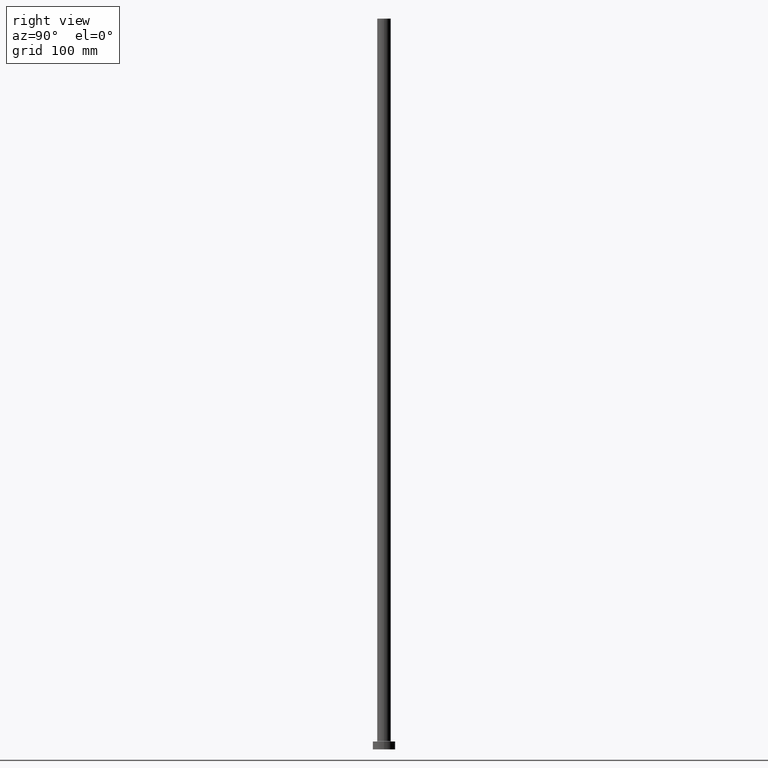
[diagram: clean part render]
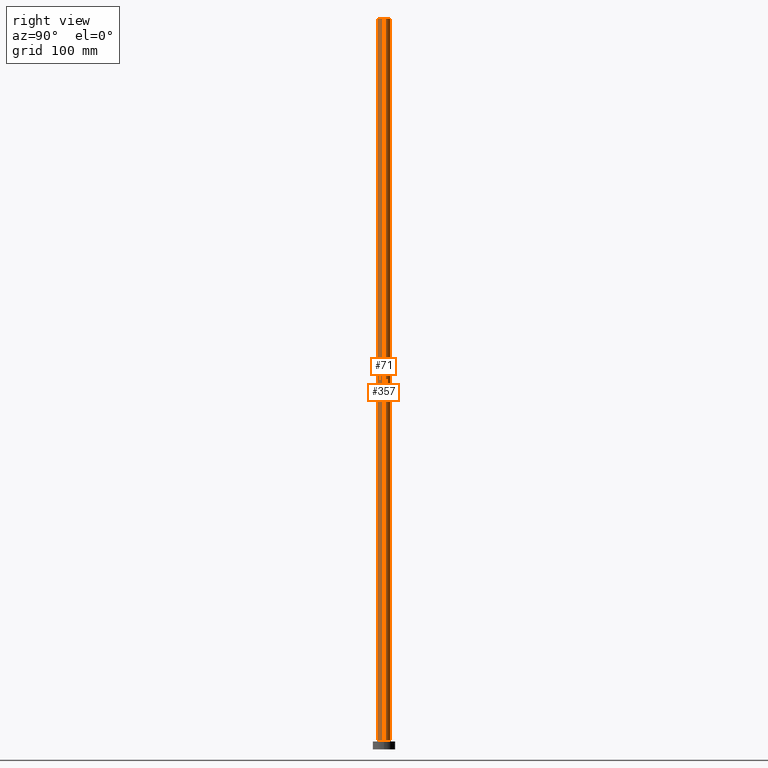
[diagram: same view with one multi-face feature highlighted, each face labeled with its STEP entity id]
A machine part, right view. The highlighted faces form ONE feature: a constant-radius fillet chain: 2 tangent blend faces with common blend radius 6 mm. The faces share edges in the B-rep.
Their STEP definitions:
[1] entity #357 (Cylinder):
#4 = CARTESIAN_POINT ( 'NONE',  ( -6.000000000000000888, 0.000000000000000000, 650.0000000000000000 ) ) ;
#9 = ORIENTED_EDGE ( 'NONE', *, *, #350, .T. ) ;
#28 = EDGE_CURVE ( 'NONE', #174, #138, #457, .T. ) ;
#46 = DIRECTION ( 'NONE',  ( 1.000000000000000000, 0.000000000000000000, 0.000000000000000000 ) ) ;
#51 = VECTOR ( 'NONE', #418, 1000.000000000000000 ) ;
#53 = DIRECTION ( 'NONE',  ( 1.000000000000000000, 0.000000000000000000, 0.000000000000000000 ) ) ;
#61 = AXIS2_PLACEMENT_3D ( 'NONE', #84, #309, #409 ) ;
#69 = CARTESIAN_POINT ( 'NONE',  ( 6.000000000000000888, 7.347880794884120722E-16, 650.0000000000000000 ) ) ;
#70 = AXIS2_PLACEMENT_3D ( 'NONE', #266, #125, #46 ) ;
#80 = CYLINDRICAL_SURFACE ( 'NONE', #61, 6.000000000000000888 ) ;
#84 = CARTESIAN_POINT ( 'NONE',  ( 0.000000000000000000, 0.000000000000000000, 650.0000000000000000 ) ) ;
#88 = DIRECTION ( 'NONE',  ( -0.000000000000000000, -0.000000000000000000, -1.000000000000000000 ) ) ;
#93 = ORIENTED_EDGE ( 'NONE', *, *, #28, .T. ) ;
#96 = VERTEX_POINT ( 'NONE', #384 ) ;
#125 = DIRECTION ( 'NONE',  ( 0.000000000000000000, 0.000000000000000000, 1.000000000000000000 ) ) ;
#129 = ORIENTED_EDGE ( 'NONE', *, *, #328, .F. ) ;
#138 = VERTEX_POINT ( 'NONE', #219 ) ;
#148 = CIRCLE ( 'NONE', #70, 6.000000000000000888 ) ;
#158 = AXIS2_PLACEMENT_3D ( 'NONE', #399, #274, #53 ) ;
#165 = LINE ( 'NONE', #405, #238 ) ;
#168 = EDGE_LOOP ( 'NONE', ( #320, #93, #9, #129 ) ) ;
#174 = VERTEX_POINT ( 'NONE', #69 ) ;
#206 = FACE_OUTER_BOUND ( 'NONE', #168, .T. ) ;
#219 = CARTESIAN_POINT ( 'NONE',  ( 6.000000000000000888, 7.347880794884120722E-16, 7.700000000000040146 ) ) ;
#238 = VECTOR ( 'NONE', #88, 1000.000000000000000 ) ;
#245 = VERTEX_POINT ( 'NONE', #4 ) ;
#266 = CARTESIAN_POINT ( 'NONE',  ( 0.000000000000000000, 0.000000000000000000, 650.0000000000000000 ) ) ;
#274 = DIRECTION ( 'NONE',  ( 0.000000000000000000, 0.000000000000000000, 1.000000000000000000 ) ) ;
#302 = EDGE_CURVE ( 'NONE', #174, #245, #148, .T. ) ;
#309 = DIRECTION ( 'NONE',  ( -0.000000000000000000, -0.000000000000000000, -1.000000000000000000 ) ) ;
#319 = CARTESIAN_POINT ( 'NONE',  ( 6.000000000000000888, 7.347880794884120722E-16, 650.0000000000000000 ) ) ;
#320 = ORIENTED_EDGE ( 'NONE', *, *, #302, .F. ) ;
#328 = EDGE_CURVE ( 'NONE', #245, #96, #165, .T. ) ;
#350 = EDGE_CURVE ( 'NONE', #138, #96, #450, .T. ) ;
#357 = ADVANCED_FACE ( 'NONE', ( #206 ), #80, .T. ) ;
#384 = CARTESIAN_POINT ( 'NONE',  ( -6.000000000000000888, 0.000000000000000000, 7.700000000000040146 ) ) ;
#399 = CARTESIAN_POINT ( 'NONE',  ( 0.000000000000000000, 0.000000000000000000, 7.700000000000040146 ) ) ;
#405 = CARTESIAN_POINT ( 'NONE',  ( -6.000000000000000888, 0.000000000000000000, 650.0000000000000000 ) ) ;
#409 = DIRECTION ( 'NONE',  ( -1.000000000000000000, 0.000000000000000000, 0.000000000000000000 ) ) ;
#418 = DIRECTION ( 'NONE',  ( -0.000000000000000000, -0.000000000000000000, -1.000000000000000000 ) ) ;
#450 = CIRCLE ( 'NONE', #158, 6.000000000000000888 ) ;
#457 = LINE ( 'NONE', #319, #51 ) ;
[2] entity #71 (Cylinder):
#4 = CARTESIAN_POINT ( 'NONE',  ( -6.000000000000000888, 0.000000000000000000, 650.0000000000000000 ) ) ;
#23 = AXIS2_PLACEMENT_3D ( 'NONE', #58, #24, #387 ) ;
#24 = DIRECTION ( 'NONE',  ( -0.000000000000000000, -0.000000000000000000, -1.000000000000000000 ) ) ;
#28 = EDGE_CURVE ( 'NONE', #174, #138, #457, .T. ) ;
#38 = DIRECTION ( 'NONE',  ( 0.000000000000000000, 0.000000000000000000, 1.000000000000000000 ) ) ;
#51 = VECTOR ( 'NONE', #418, 1000.000000000000000 ) ;
#58 = CARTESIAN_POINT ( 'NONE',  ( 0.000000000000000000, 0.000000000000000000, 650.0000000000000000 ) ) ;
#69 = CARTESIAN_POINT ( 'NONE',  ( 6.000000000000000888, 7.347880794884120722E-16, 650.0000000000000000 ) ) ;
#71 = ADVANCED_FACE ( 'NONE', ( #420 ), #145, .T. ) ;
#77 = CIRCLE ( 'NONE', #192, 6.000000000000000888 ) ;
#88 = DIRECTION ( 'NONE',  ( -0.000000000000000000, -0.000000000000000000, -1.000000000000000000 ) ) ;
#96 = VERTEX_POINT ( 'NONE', #384 ) ;
#123 = DIRECTION ( 'NONE',  ( 1.000000000000000000, 0.000000000000000000, 0.000000000000000000 ) ) ;
#130 = ORIENTED_EDGE ( 'NONE', *, *, #411, .F. ) ;
#138 = VERTEX_POINT ( 'NONE', #219 ) ;
#145 = CYLINDRICAL_SURFACE ( 'NONE', #23, 6.000000000000000888 ) ;
#156 = CARTESIAN_POINT ( 'NONE',  ( 0.000000000000000000, 0.000000000000000000, 7.700000000000040146 ) ) ;
#163 = ORIENTED_EDGE ( 'NONE', *, *, #28, .F. ) ;
#165 = LINE ( 'NONE', #405, #238 ) ;
#174 = VERTEX_POINT ( 'NONE', #69 ) ;
#180 = EDGE_LOOP ( 'NONE', ( #163, #130, #310, #441 ) ) ;
#192 = AXIS2_PLACEMENT_3D ( 'NONE', #156, #429, #123 ) ;
#219 = CARTESIAN_POINT ( 'NONE',  ( 6.000000000000000888, 7.347880794884120722E-16, 7.700000000000040146 ) ) ;
#238 = VECTOR ( 'NONE', #88, 1000.000000000000000 ) ;
#245 = VERTEX_POINT ( 'NONE', #4 ) ;
#250 = EDGE_CURVE ( 'NONE', #96, #138, #77, .T. ) ;
#299 = CIRCLE ( 'NONE', #414, 6.000000000000000888 ) ;
#310 = ORIENTED_EDGE ( 'NONE', *, *, #328, .T. ) ;
#319 = CARTESIAN_POINT ( 'NONE',  ( 6.000000000000000888, 7.347880794884120722E-16, 650.0000000000000000 ) ) ;
#328 = EDGE_CURVE ( 'NONE', #245, #96, #165, .T. ) ;
#384 = CARTESIAN_POINT ( 'NONE',  ( -6.000000000000000888, 0.000000000000000000, 7.700000000000040146 ) ) ;
#387 = DIRECTION ( 'NONE',  ( -1.000000000000000000, 0.000000000000000000, 0.000000000000000000 ) ) ;
#405 = CARTESIAN_POINT ( 'NONE',  ( -6.000000000000000888, 0.000000000000000000, 650.0000000000000000 ) ) ;
#411 = EDGE_CURVE ( 'NONE', #245, #174, #299, .T. ) ;
#414 = AXIS2_PLACEMENT_3D ( 'NONE', #443, #38, #440 ) ;
#418 = DIRECTION ( 'NONE',  ( -0.000000000000000000, -0.000000000000000000, -1.000000000000000000 ) ) ;
#420 = FACE_OUTER_BOUND ( 'NONE', #180, .T. ) ;
#429 = DIRECTION ( 'NONE',  ( 0.000000000000000000, 0.000000000000000000, 1.000000000000000000 ) ) ;
#440 = DIRECTION ( 'NONE',  ( 1.000000000000000000, 0.000000000000000000, 0.000000000000000000 ) ) ;
#441 = ORIENTED_EDGE ( 'NONE', *, *, #250, .T. ) ;
#443 = CARTESIAN_POINT ( 'NONE',  ( 0.000000000000000000, 0.000000000000000000, 650.0000000000000000 ) ) ;
#457 = LINE ( 'NONE', #319, #51 ) ;